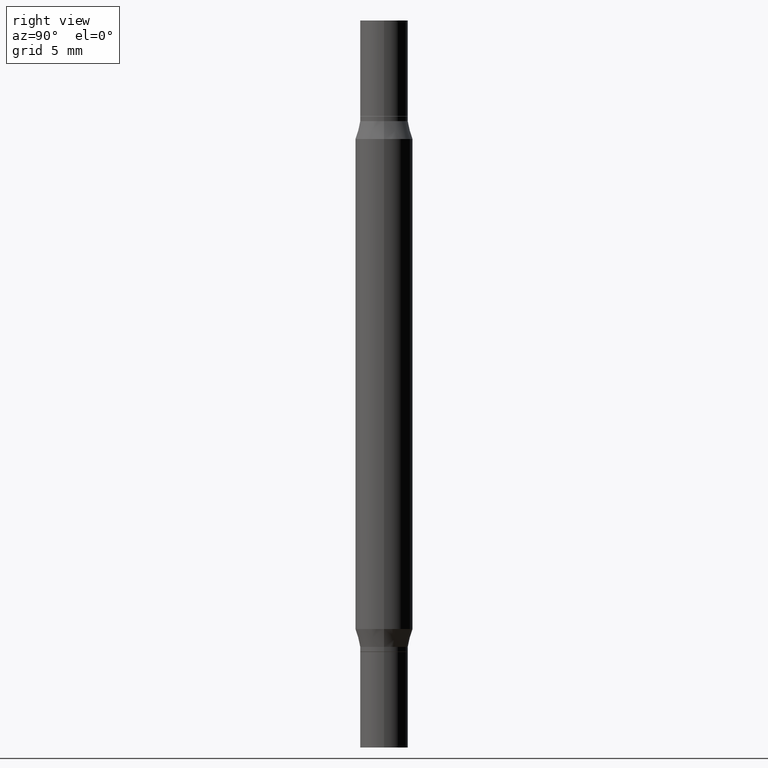
[diagram: clean part render]
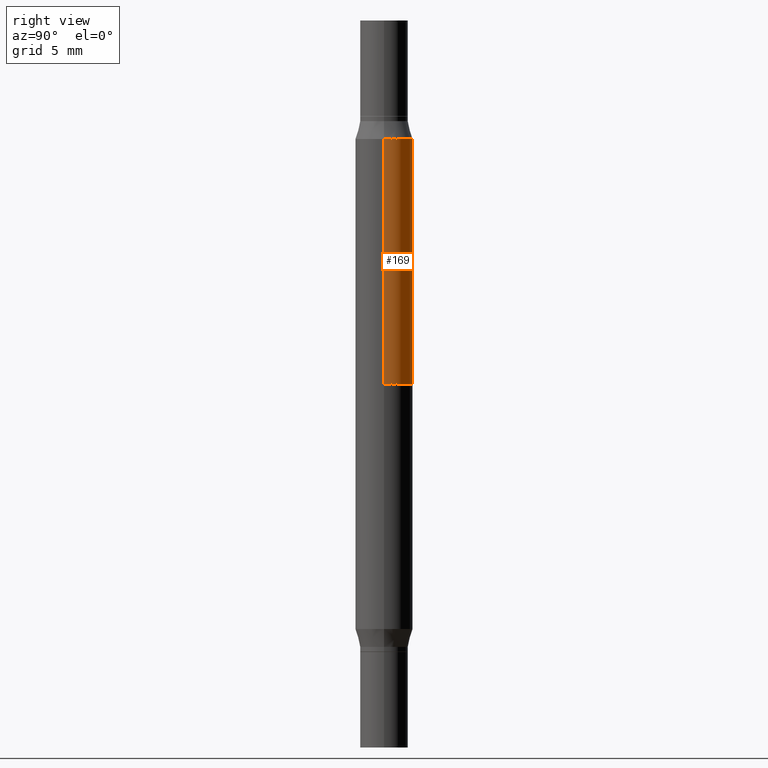
[diagram: same view with one face highlighted and labeled with its STEP entity id]
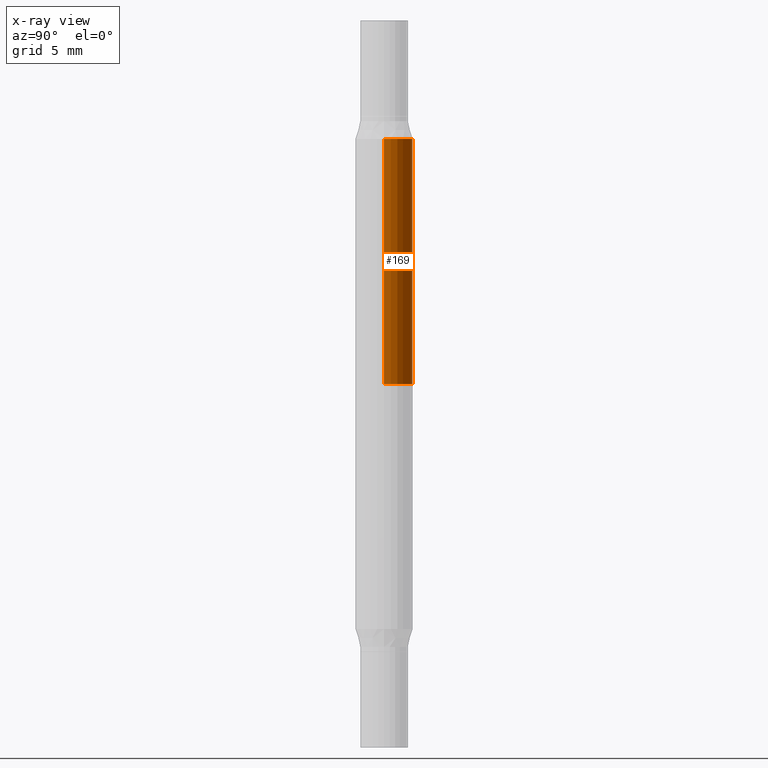
[diagram: x-ray of the same camera — body ghosted, the highlighted face saturated]
A machine part, right view. The second image highlights one B-rep face of the part: STEP entity #169.
The next image is the same camera in x-ray: the body ghosted, the highlighted face saturated — about 0% of this face is hidden behind the body in this view.
In plain terms, the highlighted cylindrical surface (edge-blend (fillet) strip) has radius 1.4999 mm, axis along (-0, -0, -1).
Its self-contained STEP definition (entity closure, byte-faithful):
#24 = LINE ( 'NONE', #476, #482 ) ;
#56 = VERTEX_POINT ( 'NONE', #295 ) ;
#59 = DIRECTION ( 'NONE',  ( 1.000000000000000000, -6.982962677686265133E-15, 0.000000000000000000 ) ) ;
#65 = CYLINDRICAL_SURFACE ( 'NONE', #146, 0.05905000000000000526 ) ;
#81 = DIRECTION ( 'NONE',  ( 1.000000000000000000, -6.982962677686272233E-15, 0.000000000000000000 ) ) ;
#90 = ORIENTED_EDGE ( 'NONE', *, *, #144, .F. ) ;
#137 = DIRECTION ( 'NONE',  ( -2.445468806185136877E-29, -3.491805094961123683E-15, -1.000000000000000000 ) ) ;
#139 = DIRECTION ( 'NONE',  ( 0.000000000000000000, 1.000000000000000000, -4.626330217890369336E-15 ) ) ;
#144 = EDGE_CURVE ( 'NONE', #502, #666, #384, .T. ) ;
#146 = AXIS2_PLACEMENT_3D ( 'NONE', #670, #765, #81 ) ;
#151 = EDGE_CURVE ( 'NONE', #56, #155, #620, .T. ) ;
#155 = VERTEX_POINT ( 'NONE', #680 ) ;
#169 = ADVANCED_FACE ( 'NONE', ( #458 ), #65, .T. ) ;
#274 = LINE ( 'NONE', #579, #399 ) ;
#275 = EDGE_CURVE ( 'NONE', #155, #502, #274, .T. ) ;
#278 = CARTESIAN_POINT ( 'NONE',  ( -0.05905000000000000526, -1.326250236009622014E-15, -0.7480499999999999927 ) ) ;
#295 = CARTESIAN_POINT ( 'NONE',  ( 0.05904999999999999832, -1.263266616151821658E-15, -0.2437607004545535860 ) ) ;
#374 = DIRECTION ( 'NONE',  ( 2.445468806185136597E-29, 3.491805094961124077E-15, 1.000000000000000000 ) ) ;
#384 = CIRCLE ( 'NONE', #971, 0.05905000000000000526 ) ;
#396 = EDGE_LOOP ( 'NONE', ( #850, #817, #569, #90 ) ) ;
#399 = VECTOR ( 'NONE', #137, 39.37007874015748143 ) ;
#400 = DIRECTION ( 'NONE',  ( -2.445468806185136877E-29, -3.491805094961123683E-15, -1.000000000000000000 ) ) ;
#455 = DIRECTION ( 'NONE',  ( -0.000000000000000000, -3.491643216902134830E-15, -1.000000000000000000 ) ) ;
#458 = FACE_OUTER_BOUND ( 'NONE', #396, .T. ) ;
#476 = CARTESIAN_POINT ( 'NONE',  ( 0.05905000000000000526, -5.636191362924657961E-15, -1.496099999999999985 ) ) ;
#482 = VECTOR ( 'NONE', #400, 39.37007874015748143 ) ;
#502 = VERTEX_POINT ( 'NONE', #278 ) ;
#569 = ORIENTED_EDGE ( 'NONE', *, *, #807, .T. ) ;
#579 = CARTESIAN_POINT ( 'NONE',  ( -0.05905000000000000526, -4.818735010038875060E-15, -1.496099999999999985 ) ) ;
#620 = CIRCLE ( 'NONE', #706, 0.05904999999999999832 ) ;
#666 = VERTEX_POINT ( 'NONE', #833 ) ;
#670 = CARTESIAN_POINT ( 'NONE',  ( 0.000000000000000000, -5.223847416807283040E-15, -1.496099999999999985 ) ) ;
#680 = CARTESIAN_POINT ( 'NONE',  ( -0.05904999999999999832, -4.458102632660388560E-16, -0.2437607004545535860 ) ) ;
#706 = AXIS2_PLACEMENT_3D ( 'NONE', #760, #374, #59 ) ;
#742 = CARTESIAN_POINT ( 'NONE',  ( 1.829332940466791194E-29, -2.611802615521614830E-15, -0.7480499999999999927 ) ) ;
#760 = CARTESIAN_POINT ( 'NONE',  ( 3.062556691798133272E-29, -8.509226700344482173E-16, -0.2437607004545535860 ) ) ;
#765 = DIRECTION ( 'NONE',  ( -2.445468806185136597E-29, -3.491805094961124077E-15, -1.000000000000000000 ) ) ;
#807 = EDGE_CURVE ( 'NONE', #56, #666, #24, .T. ) ;
#817 = ORIENTED_EDGE ( 'NONE', *, *, #151, .F. ) ;
#833 = CARTESIAN_POINT ( 'NONE',  ( 0.05905000000000000526, -2.143706588895405113E-15, -0.7480499999999999927 ) ) ;
#850 = ORIENTED_EDGE ( 'NONE', *, *, #275, .F. ) ;
#971 = AXIS2_PLACEMENT_3D ( 'NONE', #742, #455, #139 ) ;